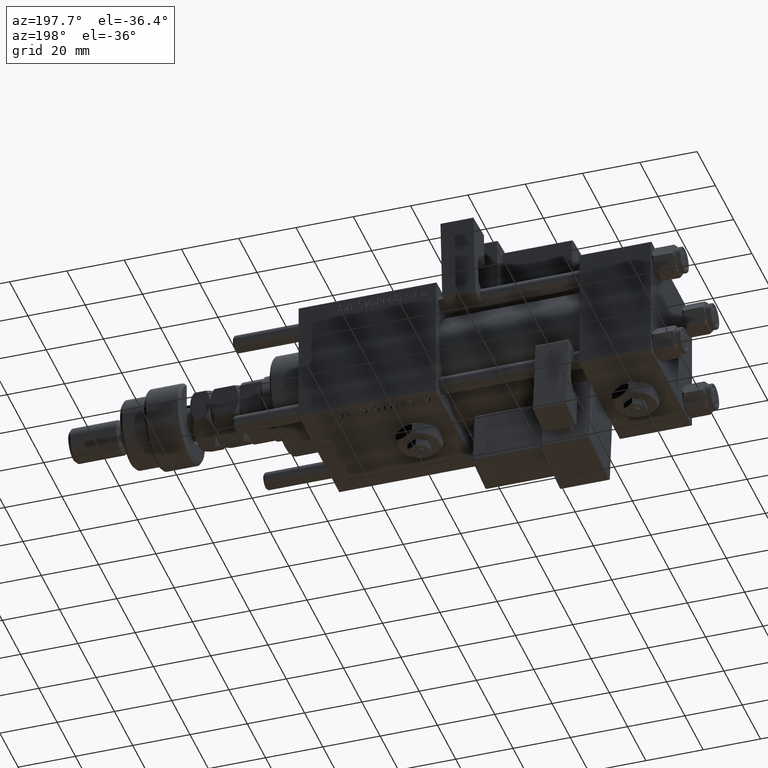
[diagram: clean part render]
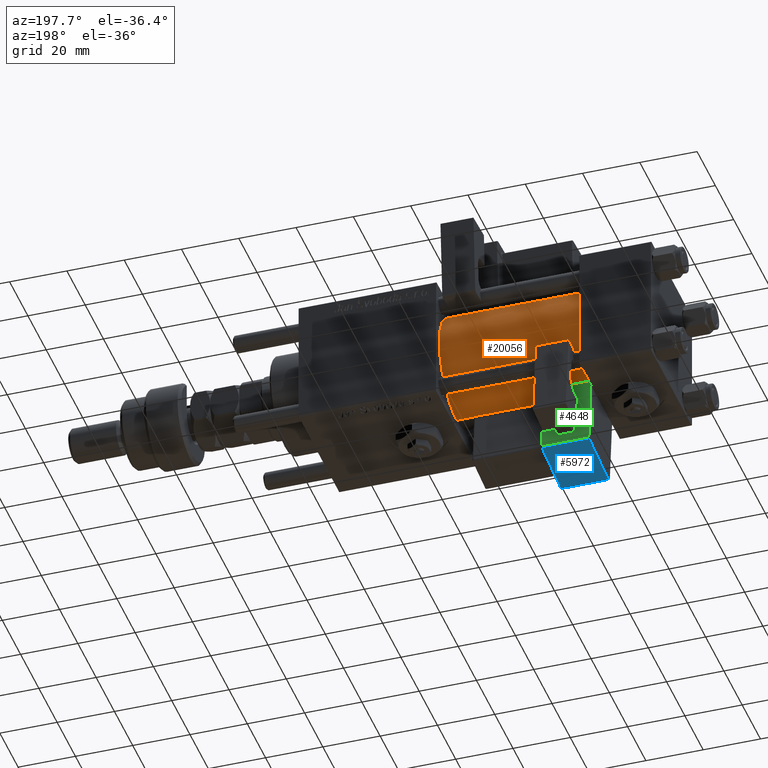
[diagram: same view with three faces highlighted in distinct colors, each labeled with its STEP entity id]
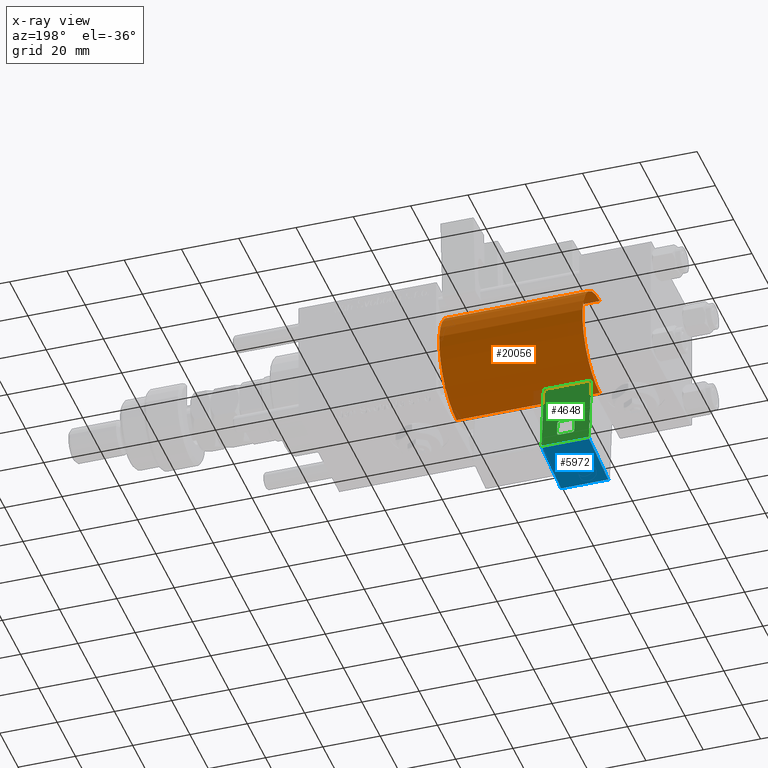
[diagram: x-ray of the same camera — body ghosted, the three highlighted faces saturated]
A machine part, auxiliary view with three faces highlighted in distinct colors.
The next image is the same camera in x-ray (body ghosted, the three faces saturated) — at least one of them is partly hidden behind the body in this view.
Their STEP definitions:

[orange] entity #20056 — the highlighted cylindrical surface (partial cylindrical patch) has radius 19 mm, axis along (-1, -0, -0).
#2967 = DIRECTION ( 'NONE',  ( -1.000000000000000000, -0.000000000000000000, -0.000000000000000000 ) ) ;
#3882 = LINE ( 'NONE', #57533, #42287 ) ;
#5069 = AXIS2_PLACEMENT_3D ( 'NONE', #26475, #31642, #27766 ) ;
#5393 = ORIENTED_EDGE ( 'NONE', *, *, #59209, .T. ) ;
#6085 = CARTESIAN_POINT ( 'NONE',  ( 25.00000000000000000, -2.752562955852396712E-16, -19.00000000000000000 ) ) ;
#7186 = CARTESIAN_POINT ( 'NONE',  ( 75.00000000000001421, -2.602085213965210642E-15, 19.00000000000000000 ) ) ;
#7691 = AXIS2_PLACEMENT_3D ( 'NONE', #44065, #50514, #20469 ) ;
#8727 = DIRECTION ( 'NONE',  ( -1.000000000000000000, -0.000000000000000000, -0.000000000000000000 ) ) ;
#9814 = CYLINDRICAL_SURFACE ( 'NONE', #7691, 19.00000000000000000 ) ;
#9995 = CIRCLE ( 'NONE', #47139, 19.00000000000000000 ) ;
#10953 = EDGE_CURVE ( 'NONE', #32318, #48181, #18121, .T. ) ;
#11014 = ORIENTED_EDGE ( 'NONE', *, *, #10953, .F. ) ;
#11182 = ORIENTED_EDGE ( 'NONE', *, *, #47470, .F. ) ;
#16496 = VERTEX_POINT ( 'NONE', #6085 ) ;
#16767 = CARTESIAN_POINT ( 'NONE',  ( 75.00000000000001421, -2.602085213965210642E-15, 19.00000000000000000 ) ) ;
#18121 = LINE ( 'NONE', #7186, #43088 ) ;
#20056 = ADVANCED_FACE ( 'NONE', ( #20143 ), #9814, .T. ) ;
#20143 = FACE_OUTER_BOUND ( 'NONE', #63254, .T. ) ;
#20469 = DIRECTION ( 'NONE',  ( 0.000000000000000000, 0.000000000000000000, 1.000000000000000000 ) ) ;
#20537 = ORIENTED_EDGE ( 'NONE', *, *, #53009, .T. ) ;
#23520 = CARTESIAN_POINT ( 'NONE',  ( 75.00000000000001421, -2.752562955852396712E-16, -19.00000000000000000 ) ) ;
#26475 = CARTESIAN_POINT ( 'NONE',  ( 25.00000000000000000, -2.602085213965210642E-15, 0.000000000000000000 ) ) ;
#27766 = DIRECTION ( 'NONE',  ( 0.000000000000000000, 0.000000000000000000, 1.000000000000000000 ) ) ;
#31642 = DIRECTION ( 'NONE',  ( 1.000000000000000000, -0.000000000000000000, 0.000000000000000000 ) ) ;
#32318 = VERTEX_POINT ( 'NONE', #16767 ) ;
#42287 = VECTOR ( 'NONE', #8727, 1000.000000000000000 ) ;
#43088 = VECTOR ( 'NONE', #2967, 1000.000000000000000 ) ;
#44065 = CARTESIAN_POINT ( 'NONE',  ( 75.00000000000001421, -2.602085213965210642E-15, 0.000000000000000000 ) ) ;
#47139 = AXIS2_PLACEMENT_3D ( 'NONE', #59323, #50579, #49317 ) ;
#47470 = EDGE_CURVE ( 'NONE', #55996, #32318, #9995, .T. ) ;
#48181 = VERTEX_POINT ( 'NONE', #55759 ) ;
#49317 = DIRECTION ( 'NONE',  ( 0.000000000000000000, 0.000000000000000000, -1.000000000000000000 ) ) ;
#50514 = DIRECTION ( 'NONE',  ( -1.000000000000000000, -0.000000000000000000, -0.000000000000000000 ) ) ;
#50579 = DIRECTION ( 'NONE',  ( 1.000000000000000000, 0.000000000000000000, 0.000000000000000000 ) ) ;
#52537 = CIRCLE ( 'NONE', #5069, 19.00000000000000000 ) ;
#53009 = EDGE_CURVE ( 'NONE', #16496, #48181, #52537, .T. ) ;
#55759 = CARTESIAN_POINT ( 'NONE',  ( 25.00000000000000000, -2.602085213965210642E-15, 19.00000000000000000 ) ) ;
#55996 = VERTEX_POINT ( 'NONE', #23520 ) ;
#57533 = CARTESIAN_POINT ( 'NONE',  ( 75.00000000000001421, -2.752562955852396712E-16, -19.00000000000000000 ) ) ;
#59209 = EDGE_CURVE ( 'NONE', #55996, #16496, #3882, .T. ) ;
#59323 = CARTESIAN_POINT ( 'NONE',  ( 75.00000000000001421, -2.602085213965210642E-15, 0.000000000000000000 ) ) ;
#63254 = EDGE_LOOP ( 'NONE', ( #11182, #5393, #20537, #11014 ) ) ;

[blue] entity #5972 — the highlighted planar face has unit normal (0, -0.1003, 0.995).
#191 = EDGE_CURVE ( 'NONE', #25805, #21683, #47332, .T. ) ;
#1450 = EDGE_CURVE ( 'NONE', #53943, #25805, #27688, .T. ) ;
#3133 = DIRECTION ( 'NONE',  ( -0.000000000000000000, 1.000000000000000000, 0.000000000000000000 ) ) ;
#3702 = ORIENTED_EDGE ( 'NONE', *, *, #47826, .T. ) ;
#5972 = ADVANCED_FACE ( 'NONE', ( #23352 ), #42745, .F. ) ;
#10889 = VECTOR ( 'NONE', #3133, 1000.000000000000000 ) ;
#13943 = VECTOR ( 'NONE', #56724, 1000.000000000000000 ) ;
#14316 = DIRECTION ( 'NONE',  ( -1.000000000000000000, -0.000000000000000000, 0.000000000000000000 ) ) ;
#14839 = CARTESIAN_POINT ( 'NONE',  ( -8.250000000000003553, -12.25000000000000000, -1.000000000000000222 ) ) ;
#15505 = CARTESIAN_POINT ( 'NONE',  ( 8.750000000000003553, -33.25000000000000000, -1.000000000000000222 ) ) ;
#17211 = CARTESIAN_POINT ( 'NONE',  ( 8.250000000000003553, -33.75000000000000000, -1.000000000000000222 ) ) ;
#17277 = AXIS2_PLACEMENT_3D ( 'NONE', #62486, #28199, #18174 ) ;
#18174 = DIRECTION ( 'NONE',  ( 1.000000000000000000, 0.000000000000000000, -0.000000000000000000 ) ) ;
#18423 = VERTEX_POINT ( 'NONE', #58782 ) ;
#21683 = VERTEX_POINT ( 'NONE', #43209 ) ;
#23352 = FACE_OUTER_BOUND ( 'NONE', #35365, .T. ) ;
#24330 = CARTESIAN_POINT ( 'NONE',  ( -8.250000000000003553, -33.25000000000000000, -1.000000000000000222 ) ) ;
#25805 = VERTEX_POINT ( 'NONE', #14839 ) ;
#27688 = LINE ( 'NONE', #47402, #10889 ) ;
#28199 = DIRECTION ( 'NONE',  ( 0.000000000000000000, 0.000000000000000000, 1.000000000000000000 ) ) ;
#29188 = EDGE_CURVE ( 'NONE', #18423, #53943, #43078, .T. ) ;
#35365 = EDGE_LOOP ( 'NONE', ( #62407, #3702, #60142, #43102 ) ) ;
#41764 = LINE ( 'NONE', #17211, #51293 ) ;
#42745 = PLANE ( 'NONE',  #17277 ) ;
#43078 = LINE ( 'NONE', #15505, #62733 ) ;
#43102 = ORIENTED_EDGE ( 'NONE', *, *, #1450, .T. ) ;
#43209 = CARTESIAN_POINT ( 'NONE',  ( 8.250000000000003553, -12.25000000000000000, -1.000000000000000222 ) ) ;
#47332 = LINE ( 'NONE', #52497, #13943 ) ;
#47402 = CARTESIAN_POINT ( 'NONE',  ( -8.250000000000003553, -33.75000000000000000, -1.000000000000000222 ) ) ;
#47826 = EDGE_CURVE ( 'NONE', #21683, #18423, #41764, .T. ) ;
#51147 = DIRECTION ( 'NONE',  ( -0.000000000000000000, -1.000000000000000000, -0.000000000000000000 ) ) ;
#51293 = VECTOR ( 'NONE', #51147, 1000.000000000000000 ) ;
#52497 = CARTESIAN_POINT ( 'NONE',  ( 8.750000000000003553, -12.25000000000000000, -1.000000000000000222 ) ) ;
#53943 = VERTEX_POINT ( 'NONE', #24330 ) ;
#56724 = DIRECTION ( 'NONE',  ( 1.000000000000000000, -0.000000000000000000, 0.000000000000000000 ) ) ;
#58782 = CARTESIAN_POINT ( 'NONE',  ( 8.250000000000003553, -33.25000000000000000, -1.000000000000000222 ) ) ;
#60142 = ORIENTED_EDGE ( 'NONE', *, *, #29188, .T. ) ;
#62407 = ORIENTED_EDGE ( 'NONE', *, *, #191, .T. ) ;
#62486 = CARTESIAN_POINT ( 'NONE',  ( 8.750000000000003553, -33.75000000000000000, -1.000000000000000222 ) ) ;
#62733 = VECTOR ( 'NONE', #14316, 1000.000000000000000 ) ;

[green] entity #4648 — the highlighted planar face has unit normal (0, 0.995, 0.1003).
#1735 = CARTESIAN_POINT ( 'NONE',  ( 8.250000000000000000, -11.75000000000000000, 24.49999999999999645 ) ) ;
#2940 = EDGE_CURVE ( 'NONE', #8472, #39136, #25525, .T. ) ;
#3734 = EDGE_LOOP ( 'NONE', ( #19435, #13235, #35978, #30016, #45248, #62579, #61819, #7388 ) ) ;
#3922 = CARTESIAN_POINT ( 'NONE',  ( 8.750000000000000000, -11.75000000000000000, 24.49999999999999645 ) ) ;
#3954 = VECTOR ( 'NONE', #15872, 1000.000000000000000 ) ;
#4648 = ADVANCED_FACE ( 'NONE', ( #42804, #24056 ), #33418, .T. ) ;
#4902 = VECTOR ( 'NONE', #7976, 1000.000000000000000 ) ;
#4919 = VERTEX_POINT ( 'NONE', #11978 ) ;
#6707 = VECTOR ( 'NONE', #53088, 1000.000000000000000 ) ;
#6824 = VECTOR ( 'NONE', #18724, 1000.000000000000000 ) ;
#6948 = AXIS2_PLACEMENT_3D ( 'NONE', #37952, #14035, #57359 ) ;
#7388 = ORIENTED_EDGE ( 'NONE', *, *, #2940, .T. ) ;
#7659 = LINE ( 'NONE', #61959, #4902 ) ;
#7976 = DIRECTION ( 'NONE',  ( 1.334402673828313093E-16, -0.000000000000000000, 1.000000000000000000 ) ) ;
#8309 = VERTEX_POINT ( 'NONE', #36485 ) ;
#8472 = VERTEX_POINT ( 'NONE', #24165 ) ;
#8657 = DIRECTION ( 'NONE',  ( 0.000000000000000000, 0.000000000000000000, -1.000000000000000000 ) ) ;
#11087 = VERTEX_POINT ( 'NONE', #60420 ) ;
#11424 = DIRECTION ( 'NONE',  ( -1.000000000000000000, 0.000000000000000000, 0.000000000000000000 ) ) ;
#11799 = EDGE_CURVE ( 'NONE', #4919, #15944, #32130, .T. ) ;
#11964 = VECTOR ( 'NONE', #60443, 1000.000000000000114 ) ;
#11978 = CARTESIAN_POINT ( 'NONE',  ( 8.250000000000003553, -11.75000000000000000, -0.5000000000000002220 ) ) ;
#12019 = CARTESIAN_POINT ( 'NONE',  ( -8.250000000000000000, -11.75000000000000000, 24.50000000000000000 ) ) ;
#13235 = ORIENTED_EDGE ( 'NONE', *, *, #39066, .T. ) ;
#14035 = DIRECTION ( 'NONE',  ( 0.000000000000000000, 1.000000000000000000, 0.000000000000000000 ) ) ;
#14519 = CARTESIAN_POINT ( 'NONE',  ( -3.000000000000000000, -11.75000000000000000, 8.500000000000007105 ) ) ;
#14952 = VECTOR ( 'NONE', #11424, 1000.000000000000000 ) ;
#15872 = DIRECTION ( 'NONE',  ( 1.000000000000000000, -0.000000000000000000, 7.228014483236695816E-17 ) ) ;
#15944 = VERTEX_POINT ( 'NONE', #42795 ) ;
#17376 = DIRECTION ( 'NONE',  ( -0.7071067811865426878, -0.000000000000000000, 0.7071067811865524577 ) ) ;
#17746 = CARTESIAN_POINT ( 'NONE',  ( 3.000000000000000000, -11.75000000000000000, 8.500000000000000000 ) ) ;
#18724 = DIRECTION ( 'NONE',  ( -0.7071067811865524577, 0.000000000000000000, -0.7071067811865426878 ) ) ;
#19435 = ORIENTED_EDGE ( 'NONE', *, *, #40009, .T. ) ;
#19734 = LINE ( 'NONE', #3922, #52275 ) ;
#22107 = EDGE_CURVE ( 'NONE', #8309, #49242, #26283, .T. ) ;
#22316 = VERTEX_POINT ( 'NONE', #42284 ) ;
#22897 = LINE ( 'NONE', #42898, #38815 ) ;
#22965 = EDGE_CURVE ( 'NONE', #11087, #22316, #33690, .T. ) ;
#23166 = CARTESIAN_POINT ( 'NONE',  ( 3.000000000000000888, -11.75000000000000000, 3.500000000000008438 ) ) ;
#23820 = LINE ( 'NONE', #43832, #34019 ) ;
#24056 = FACE_BOUND ( 'NONE', #3734, .T. ) ;
#24165 = CARTESIAN_POINT ( 'NONE',  ( 2.499999999999993339, -11.75000000000000000, 3.000000000000000888 ) ) ;
#25525 = LINE ( 'NONE', #59476, #11964 ) ;
#26283 = LINE ( 'NONE', #50528, #14952 ) ;
#26318 = CARTESIAN_POINT ( 'NONE',  ( -8.750000000000003553, -11.75000000000000000, -0.5000000000000002220 ) ) ;
#27732 = EDGE_LOOP ( 'NONE', ( #39903, #47439, #50897, #63926 ) ) ;
#30016 = ORIENTED_EDGE ( 'NONE', *, *, #44671, .T. ) ;
#30154 = EDGE_CURVE ( 'NONE', #35161, #62475, #19734, .T. ) ;
#32130 = LINE ( 'NONE', #26318, #48309 ) ;
#32576 = EDGE_CURVE ( 'NONE', #15944, #35161, #7659, .T. ) ;
#33418 = PLANE ( 'NONE',  #6948 ) ;
#33690 = LINE ( 'NONE', #53416, #6707 ) ;
#34019 = VECTOR ( 'NONE', #62945, 1000.000000000000000 ) ;
#34599 = DIRECTION ( 'NONE',  ( -1.445602896647339163E-16, -0.000000000000000000, 1.000000000000000000 ) ) ;
#35161 = VERTEX_POINT ( 'NONE', #12019 ) ;
#35978 = ORIENTED_EDGE ( 'NONE', *, *, #22107, .T. ) ;
#36485 = CARTESIAN_POINT ( 'NONE',  ( 2.500000000000006661, -11.75000000000000000, 9.000000000000001776 ) ) ;
#37952 = CARTESIAN_POINT ( 'NONE',  ( 0.000000000000000000, -11.75000000000000000, 0.000000000000000000 ) ) ;
#38812 = LINE ( 'NONE', #63404, #63040 ) ;
#38815 = VECTOR ( 'NONE', #8657, 1000.000000000000000 ) ;
#39066 = EDGE_CURVE ( 'NONE', #54012, #8309, #55827, .T. ) ;
#39136 = VERTEX_POINT ( 'NONE', #23166 ) ;
#39903 = ORIENTED_EDGE ( 'NONE', *, *, #11799, .T. ) ;
#40009 = EDGE_CURVE ( 'NONE', #39136, #54012, #38812, .T. ) ;
#42284 = CARTESIAN_POINT ( 'NONE',  ( -2.499999999999976907, -11.75000000000000000, 3.000000000000000444 ) ) ;
#42795 = CARTESIAN_POINT ( 'NONE',  ( -8.250000000000003553, -11.75000000000000000, -0.5000000000000002220 ) ) ;
#42804 = FACE_OUTER_BOUND ( 'NONE', #27732, .T. ) ;
#42898 = CARTESIAN_POINT ( 'NONE',  ( -3.000000000000000000, -11.75000000000000000, 9.000000000000001776 ) ) ;
#43832 = CARTESIAN_POINT ( 'NONE',  ( 8.250000000000003553, -11.75000000000000000, -1.000000000000000888 ) ) ;
#44283 = DIRECTION ( 'NONE',  ( 1.000000000000000000, -0.000000000000000000, -1.982541115402065110E-16 ) ) ;
#44671 = EDGE_CURVE ( 'NONE', #49242, #62526, #63021, .T. ) ;
#45248 = ORIENTED_EDGE ( 'NONE', *, *, #45920, .T. ) ;
#45920 = EDGE_CURVE ( 'NONE', #62526, #11087, #22897, .T. ) ;
#46452 = VECTOR ( 'NONE', #17376, 1000.000000000000000 ) ;
#47295 = CARTESIAN_POINT ( 'NONE',  ( -3.000000000000000000, -11.75000000000000000, 8.500000000000007105 ) ) ;
#47439 = ORIENTED_EDGE ( 'NONE', *, *, #32576, .T. ) ;
#48309 = VECTOR ( 'NONE', #51854, 1000.000000000000000 ) ;
#49242 = VERTEX_POINT ( 'NONE', #58090 ) ;
#49817 = CARTESIAN_POINT ( 'NONE',  ( 3.000000000000000888, -11.75000000000000000, 3.000000000000000888 ) ) ;
#50528 = CARTESIAN_POINT ( 'NONE',  ( 3.000000000000000000, -11.75000000000000000, 9.000000000000001776 ) ) ;
#50897 = ORIENTED_EDGE ( 'NONE', *, *, #30154, .T. ) ;
#51854 = DIRECTION ( 'NONE',  ( -1.000000000000000000, 0.000000000000000000, -0.000000000000000000 ) ) ;
#52275 = VECTOR ( 'NONE', #44283, 1000.000000000000000 ) ;
#53088 = DIRECTION ( 'NONE',  ( 0.7071067811865472397, -0.000000000000000000, -0.7071067811865479058 ) ) ;
#53416 = CARTESIAN_POINT ( 'NONE',  ( -2.499999999999978684, -11.75000000000000000, 3.000000000000000444 ) ) ;
#54012 = VERTEX_POINT ( 'NONE', #17746 ) ;
#55498 = CARTESIAN_POINT ( 'NONE',  ( 2.500000000000006661, -11.75000000000000000, 9.000000000000001776 ) ) ;
#55565 = EDGE_CURVE ( 'NONE', #22316, #8472, #58899, .T. ) ;
#55827 = LINE ( 'NONE', #55498, #46452 ) ;
#57359 = DIRECTION ( 'NONE',  ( 0.000000000000000000, -0.000000000000000000, 1.000000000000000000 ) ) ;
#58090 = CARTESIAN_POINT ( 'NONE',  ( -2.499999999999999556, -11.75000000000000000, 9.000000000000001776 ) ) ;
#58845 = EDGE_CURVE ( 'NONE', #62475, #4919, #23820, .T. ) ;
#58899 = LINE ( 'NONE', #49817, #3954 ) ;
#59476 = CARTESIAN_POINT ( 'NONE',  ( 3.000000000000000888, -11.75000000000000000, 3.500000000000008438 ) ) ;
#60420 = CARTESIAN_POINT ( 'NONE',  ( -3.000000000000000000, -11.75000000000000000, 3.500000000000022204 ) ) ;
#60443 = DIRECTION ( 'NONE',  ( 0.7071067811865474617, -0.000000000000000000, 0.7071067811865474617 ) ) ;
#61819 = ORIENTED_EDGE ( 'NONE', *, *, #55565, .T. ) ;
#61959 = CARTESIAN_POINT ( 'NONE',  ( -8.250000000000000000, -11.75000000000000000, 25.00000000000000000 ) ) ;
#62475 = VERTEX_POINT ( 'NONE', #1735 ) ;
#62526 = VERTEX_POINT ( 'NONE', #47295 ) ;
#62579 = ORIENTED_EDGE ( 'NONE', *, *, #22965, .T. ) ;
#62945 = DIRECTION ( 'NONE',  ( 1.334402673828313339E-16, -0.000000000000000000, -1.000000000000000000 ) ) ;
#63021 = LINE ( 'NONE', #14519, #6824 ) ;
#63040 = VECTOR ( 'NONE', #34599, 1000.000000000000000 ) ;
#63404 = CARTESIAN_POINT ( 'NONE',  ( 3.000000000000000000, -11.75000000000000000, 9.000000000000001776 ) ) ;
#63926 = ORIENTED_EDGE ( 'NONE', *, *, #58845, .T. ) ;